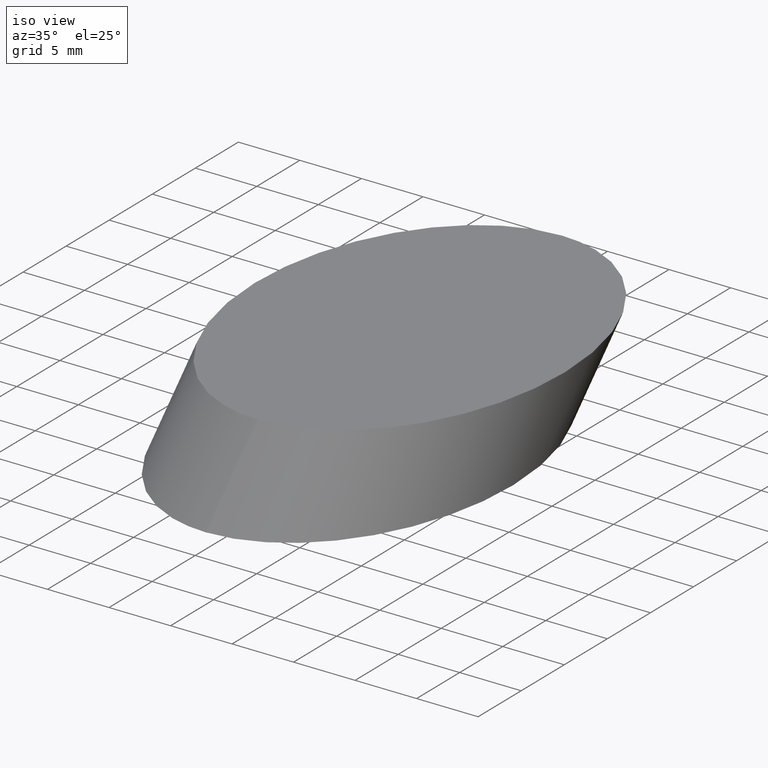
[diagram: clean part render]
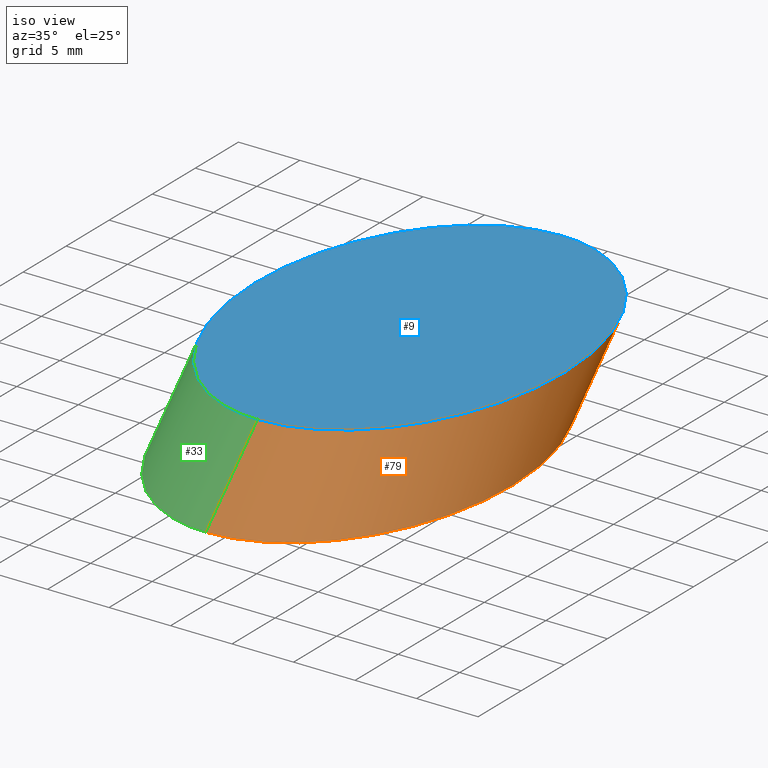
[diagram: same view with three faces highlighted in distinct colors, each labeled with its STEP entity id]
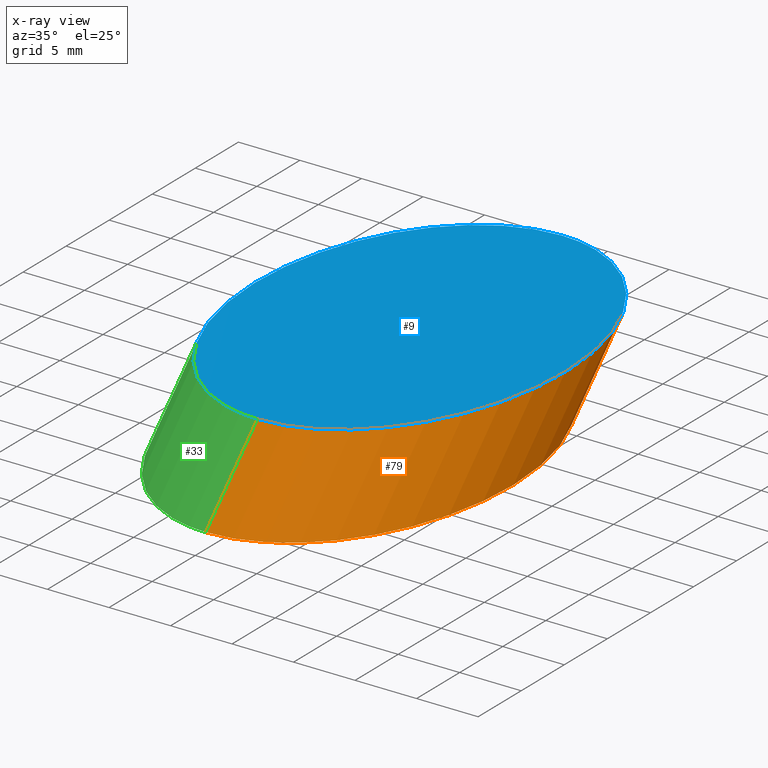
[diagram: x-ray of the same camera — body ghosted, the three highlighted faces saturated]
A machine part, iso view with three faces highlighted in distinct colors.
The next image is the same camera in x-ray (body ghosted, the three faces saturated) — at least one of them is partly hidden behind the body in this view.
Their STEP definitions:

[orange] entity #79 — the highlighted face is a freeform B-spline surface patch.
#5 = CARTESIAN_POINT ( 'NONE',  ( 54.39238298171605400, 47.46885835991988500, -6.000013170402204400 ) ) ;
#16 = CARTESIAN_POINT ( 'NONE',  ( 54.39238298171605400, 18.10887153032210500, -2.602085213965210600E-015 ) ) ;
#18 = LINE ( 'NONE', #80, #77 ) ;
#20 = CARTESIAN_POINT ( 'NONE',  ( 54.39238298171605400, 12.10885835991988600, -6.000013170402204400 ) ) ;
#22 = ORIENTED_EDGE ( 'NONE', *, *, #114, .T. ) ;
#31 = FACE_OUTER_BOUND ( 'NONE', #51, .T. ) ;
#43 =( BOUNDED_CURVE ( )  B_SPLINE_CURVE ( 3, ( #145, #55, #106, #5 ),
 .UNSPECIFIED., .F., .F. ) 
 B_SPLINE_CURVE_WITH_KNOTS ( ( 4, 4 ),
 ( 0.0000000000000000000, 3.141592653589793100 ),
 .UNSPECIFIED. ) 
 CURVE ( )  GEOMETRIC_REPRESENTATION_ITEM ( )  RATIONAL_B_SPLINE_CURVE ( ( 1.000000000000000000, 0.3333333333333333700, 0.3333333333333333700, 1.000000000000000000 ) ) 
 REPRESENTATION_ITEM ( '' )  );
#47 = VECTOR ( 'NONE', #135, 1000.000000000000000 ) ;
#51 = EDGE_LOOP ( 'NONE', ( #22, #66, #70, #91 ) ) ;
#52 = CARTESIAN_POINT ( 'NONE',  ( 54.39238298171605400, 53.46887153032210400, -2.602085213965210600E-015 ) ) ;
#55 = CARTESIAN_POINT ( 'NONE',  ( 79.39238298171605400, 12.10885835991988900, -6.000013170402204400 ) ) ;
#56 = CARTESIAN_POINT ( 'NONE',  ( 54.39238298171605400, 18.10887153032210500, 0.0000000000000000000 ) ) ;
#58 = VERTEX_POINT ( 'NONE', #74 ) ;
#59 = VERTEX_POINT ( 'NONE', #85 ) ;
#63 = CARTESIAN_POINT ( 'NONE',  ( 54.39238298171605400, 47.46885835991988500, -6.000013170402204400 ) ) ;
#66 = ORIENTED_EDGE ( 'NONE', *, *, #108, .T. ) ;
#69 =( BOUNDED_SURFACE ( )  B_SPLINE_SURFACE ( 3, 1, ( 
 ( #141, #16 ),
 ( #87, #132 ),
 ( #120, #130 ),
 ( #63, #52 ) ),
 .UNSPECIFIED., .F., .F., .F. ) 
 B_SPLINE_SURFACE_WITH_KNOTS ( ( 4, 4 ),
 ( 2, 2 ),
 ( 0.0000000000000000000, 1.000000000000000000 ),
 ( 0.0000000000000000000, 1.000000000000000000 ),
 .UNSPECIFIED. ) 
 GEOMETRIC_REPRESENTATION_ITEM ( )  RATIONAL_B_SPLINE_SURFACE ( (
 ( 1.000000000000000000, 1.000000000000000000),
 ( 0.3333333333333333700, 0.3333333333333333700),
 ( 0.3333333333333333700, 0.3333333333333333700),
 ( 1.000000000000000000, 1.000000000000000000) ) ) 
 REPRESENTATION_ITEM ( '' )  SURFACE ( )  );
#70 = ORIENTED_EDGE ( 'NONE', *, *, #88, .F. ) ;
#74 = CARTESIAN_POINT ( 'NONE',  ( 54.39238298171605400, 47.46885835991988500, -6.000013170402204400 ) ) ;
#77 = VECTOR ( 'NONE', #142, 1000.000000000000000 ) ;
#79 = ADVANCED_FACE ( 'NONE', ( #31 ), #69, .T. ) ;
#80 = CARTESIAN_POINT ( 'NONE',  ( 54.39238298171605400, 47.46885835991988500, -6.000013170402204400 ) ) ;
#81 = LINE ( 'NONE', #20, #47 ) ;
#85 = CARTESIAN_POINT ( 'NONE',  ( 54.39238298171605400, 18.10887153032210500, 0.0000000000000000000 ) ) ;
#87 = CARTESIAN_POINT ( 'NONE',  ( 79.39238298171605400, 12.10885835991988600, -6.000013170402204400 ) ) ;
#88 = EDGE_CURVE ( 'NONE', #59, #119, #92, .T. ) ;
#89 = CARTESIAN_POINT ( 'NONE',  ( 79.39238298171605400, 53.46887153032210400, 0.0000000000000000000 ) ) ;
#91 = ORIENTED_EDGE ( 'NONE', *, *, #101, .F. ) ;
#92 =( BOUNDED_CURVE ( )  B_SPLINE_CURVE ( 3, ( #56, #134, #89, #137 ),
 .UNSPECIFIED., .F., .T. ) 
 B_SPLINE_CURVE_WITH_KNOTS ( ( 4, 4 ),
 ( 0.0000000000000000000, 3.141592653589793100 ),
 .UNSPECIFIED. ) 
 CURVE ( )  GEOMETRIC_REPRESENTATION_ITEM ( )  RATIONAL_B_SPLINE_CURVE ( ( 1.000000000000000000, 0.3333333333333333700, 0.3333333333333333700, 1.000000000000000000 ) ) 
 REPRESENTATION_ITEM ( '' )  );
#99 = VERTEX_POINT ( 'NONE', #131 ) ;
#101 = EDGE_CURVE ( 'NONE', #99, #59, #81, .T. ) ;
#106 = CARTESIAN_POINT ( 'NONE',  ( 79.39238298171605400, 47.46885835991987800, -6.000013170402204400 ) ) ;
#108 = EDGE_CURVE ( 'NONE', #58, #119, #18, .T. ) ;
#114 = EDGE_CURVE ( 'NONE', #99, #58, #43, .T. ) ;
#119 = VERTEX_POINT ( 'NONE', #146 ) ;
#120 = CARTESIAN_POINT ( 'NONE',  ( 79.39238298171605400, 47.46885835991988500, -6.000013170402204400 ) ) ;
#130 = CARTESIAN_POINT ( 'NONE',  ( 79.39238298171605400, 53.46887153032210400, -2.602085213965210200E-015 ) ) ;
#131 = CARTESIAN_POINT ( 'NONE',  ( 54.39238298171605400, 12.10885835991988600, -6.000013170402204400 ) ) ;
#132 = CARTESIAN_POINT ( 'NONE',  ( 79.39238298171605400, 18.10887153032210200, -2.602085213965210200E-015 ) ) ;
#134 = CARTESIAN_POINT ( 'NONE',  ( 79.39238298171605400, 18.10887153032210200, 0.0000000000000000000 ) ) ;
#135 = DIRECTION ( 'NONE',  ( 0.0000000000000000000, 0.7071067811865484600, 0.7071067811865465700 ) ) ;
#137 = CARTESIAN_POINT ( 'NONE',  ( 54.39238298171605400, 53.46887153032210400, 0.0000000000000000000 ) ) ;
#141 = CARTESIAN_POINT ( 'NONE',  ( 54.39238298171605400, 12.10885835991988600, -6.000013170402204400 ) ) ;
#142 = DIRECTION ( 'NONE',  ( 0.0000000000000000000, 0.7071067811865484600, 0.7071067811865465700 ) ) ;
#145 = CARTESIAN_POINT ( 'NONE',  ( 54.39238298171605400, 12.10885835991988600, -6.000013170402204400 ) ) ;
#146 = CARTESIAN_POINT ( 'NONE',  ( 54.39238298171605400, 53.46887153032210400, 0.0000000000000000000 ) ) ;

[blue] entity #9 — the highlighted planar face has unit normal (0, 0, 1).
#9 = ADVANCED_FACE ( 'NONE', ( #109 ), #72, .T. ) ;
#19 = EDGE_CURVE ( 'NONE', #119, #59, #96, .T. ) ;
#27 = AXIS2_PLACEMENT_3D ( 'NONE', #75, #39, #84 ) ;
#39 = DIRECTION ( 'NONE',  ( 0.0000000000000000000, 0.0000000000000000000, 1.000000000000000000 ) ) ;
#56 = CARTESIAN_POINT ( 'NONE',  ( 54.39238298171605400, 18.10887153032210500, 0.0000000000000000000 ) ) ;
#59 = VERTEX_POINT ( 'NONE', #85 ) ;
#72 = PLANE ( 'NONE',  #27 ) ;
#75 = CARTESIAN_POINT ( 'NONE',  ( 54.39238298171605400, 35.78887153032210500, 0.0000000000000000000 ) ) ;
#84 = DIRECTION ( 'NONE',  ( 1.000000000000000000, 0.0000000000000000000, -0.0000000000000000000 ) ) ;
#85 = CARTESIAN_POINT ( 'NONE',  ( 54.39238298171605400, 18.10887153032210500, 0.0000000000000000000 ) ) ;
#88 = EDGE_CURVE ( 'NONE', #59, #119, #92, .T. ) ;
#89 = CARTESIAN_POINT ( 'NONE',  ( 79.39238298171605400, 53.46887153032210400, 0.0000000000000000000 ) ) ;
#92 =( BOUNDED_CURVE ( )  B_SPLINE_CURVE ( 3, ( #56, #134, #89, #137 ),
 .UNSPECIFIED., .F., .T. ) 
 B_SPLINE_CURVE_WITH_KNOTS ( ( 4, 4 ),
 ( 0.0000000000000000000, 3.141592653589793100 ),
 .UNSPECIFIED. ) 
 CURVE ( )  GEOMETRIC_REPRESENTATION_ITEM ( )  RATIONAL_B_SPLINE_CURVE ( ( 1.000000000000000000, 0.3333333333333333700, 0.3333333333333333700, 1.000000000000000000 ) ) 
 REPRESENTATION_ITEM ( '' )  );
#94 = CARTESIAN_POINT ( 'NONE',  ( 54.39238298171605400, 18.10887153032210500, 0.0000000000000000000 ) ) ;
#95 = CARTESIAN_POINT ( 'NONE',  ( 54.39238298171605400, 53.46887153032210400, 0.0000000000000000000 ) ) ;
#96 =( BOUNDED_CURVE ( )  B_SPLINE_CURVE ( 3, ( #95, #128, #105, #94 ),
 .UNSPECIFIED., .F., .F. ) 
 B_SPLINE_CURVE_WITH_KNOTS ( ( 4, 4 ),
 ( 3.141592653589793100, 6.283185307179586200 ),
 .UNSPECIFIED. ) 
 CURVE ( )  GEOMETRIC_REPRESENTATION_ITEM ( )  RATIONAL_B_SPLINE_CURVE ( ( 1.000000000000000000, 0.3333333333333333700, 0.3333333333333333700, 1.000000000000000000 ) ) 
 REPRESENTATION_ITEM ( '' )  );
#105 = CARTESIAN_POINT ( 'NONE',  ( 29.39238298171604700, 18.10887153032210200, 0.0000000000000000000 ) ) ;
#109 = FACE_OUTER_BOUND ( 'NONE', #136, .T. ) ;
#119 = VERTEX_POINT ( 'NONE', #146 ) ;
#127 = ORIENTED_EDGE ( 'NONE', *, *, #19, .T. ) ;
#128 = CARTESIAN_POINT ( 'NONE',  ( 29.39238298171604700, 53.46887153032211200, 0.0000000000000000000 ) ) ;
#134 = CARTESIAN_POINT ( 'NONE',  ( 79.39238298171605400, 18.10887153032210200, 0.0000000000000000000 ) ) ;
#136 = EDGE_LOOP ( 'NONE', ( #147, #127 ) ) ;
#137 = CARTESIAN_POINT ( 'NONE',  ( 54.39238298171605400, 53.46887153032210400, 0.0000000000000000000 ) ) ;
#146 = CARTESIAN_POINT ( 'NONE',  ( 54.39238298171605400, 53.46887153032210400, 0.0000000000000000000 ) ) ;
#147 = ORIENTED_EDGE ( 'NONE', *, *, #88, .T. ) ;

[green] entity #33 — the highlighted face is a freeform B-spline surface patch.
#3 = CARTESIAN_POINT ( 'NONE',  ( 54.39238298171605400, 18.10887153032210500, -1.734723475976807100E-015 ) ) ;
#4 = ORIENTED_EDGE ( 'NONE', *, *, #108, .F. ) ;
#18 = LINE ( 'NONE', #80, #77 ) ;
#19 = EDGE_CURVE ( 'NONE', #119, #59, #96, .T. ) ;
#20 = CARTESIAN_POINT ( 'NONE',  ( 54.39238298171605400, 12.10885835991988600, -6.000013170402204400 ) ) ;
#28 = CARTESIAN_POINT ( 'NONE',  ( 29.39238298171604700, 47.46885835991989200, -6.000013170402204400 ) ) ;
#29 = CARTESIAN_POINT ( 'NONE',  ( 29.39238298171604700, 47.46885835991989200, -6.000013170402204400 ) ) ;
#33 = ADVANCED_FACE ( 'NONE', ( #62 ), #49, .T. ) ;
#35 = ORIENTED_EDGE ( 'NONE', *, *, #19, .F. ) ;
#41 = CARTESIAN_POINT ( 'NONE',  ( 54.39238298171605400, 12.10885835991988600, -6.000013170402204400 ) ) ;
#47 = VECTOR ( 'NONE', #135, 1000.000000000000000 ) ;
#49 =( BOUNDED_SURFACE ( )  B_SPLINE_SURFACE ( 3, 1, ( 
 ( #50, #129 ),
 ( #28, #117 ),
 ( #97, #140 ),
 ( #71, #3 ) ),
 .UNSPECIFIED., .F., .F., .T. ) 
 B_SPLINE_SURFACE_WITH_KNOTS ( ( 4, 4 ),
 ( 2, 2 ),
 ( 0.0000000000000000000, 1.000000000000000000 ),
 ( 0.0000000000000000000, 1.000000000000000000 ),
 .UNSPECIFIED. ) 
 GEOMETRIC_REPRESENTATION_ITEM ( )  RATIONAL_B_SPLINE_SURFACE ( (
 ( 1.000000000000000000, 1.000000000000000000),
 ( 0.3333333333333333700, 0.3333333333333333700),
 ( 0.3333333333333333700, 0.3333333333333333700),
 ( 1.000000000000000000, 1.000000000000000000) ) ) 
 REPRESENTATION_ITEM ( '' )  SURFACE ( )  );
#50 = CARTESIAN_POINT ( 'NONE',  ( 54.39238298171605400, 47.46885835991988500, -6.000013170402204400 ) ) ;
#58 = VERTEX_POINT ( 'NONE', #74 ) ;
#59 = VERTEX_POINT ( 'NONE', #85 ) ;
#62 = FACE_OUTER_BOUND ( 'NONE', #115, .T. ) ;
#65 =( BOUNDED_CURVE ( )  B_SPLINE_CURVE ( 3, ( #116, #29, #143, #41 ),
 .UNSPECIFIED., .F., .T. ) 
 B_SPLINE_CURVE_WITH_KNOTS ( ( 4, 4 ),
 ( 3.141592653589793100, 6.283185307179586200 ),
 .UNSPECIFIED. ) 
 CURVE ( )  GEOMETRIC_REPRESENTATION_ITEM ( )  RATIONAL_B_SPLINE_CURVE ( ( 1.000000000000000000, 0.3333333333333333700, 0.3333333333333333700, 1.000000000000000000 ) ) 
 REPRESENTATION_ITEM ( '' )  );
#67 = ORIENTED_EDGE ( 'NONE', *, *, #82, .T. ) ;
#71 = CARTESIAN_POINT ( 'NONE',  ( 54.39238298171605400, 12.10885835991988600, -6.000013170402204400 ) ) ;
#74 = CARTESIAN_POINT ( 'NONE',  ( 54.39238298171605400, 47.46885835991988500, -6.000013170402204400 ) ) ;
#77 = VECTOR ( 'NONE', #142, 1000.000000000000000 ) ;
#80 = CARTESIAN_POINT ( 'NONE',  ( 54.39238298171605400, 47.46885835991988500, -6.000013170402204400 ) ) ;
#81 = LINE ( 'NONE', #20, #47 ) ;
#82 = EDGE_CURVE ( 'NONE', #58, #99, #65, .T. ) ;
#85 = CARTESIAN_POINT ( 'NONE',  ( 54.39238298171605400, 18.10887153032210500, 0.0000000000000000000 ) ) ;
#94 = CARTESIAN_POINT ( 'NONE',  ( 54.39238298171605400, 18.10887153032210500, 0.0000000000000000000 ) ) ;
#95 = CARTESIAN_POINT ( 'NONE',  ( 54.39238298171605400, 53.46887153032210400, 0.0000000000000000000 ) ) ;
#96 =( BOUNDED_CURVE ( )  B_SPLINE_CURVE ( 3, ( #95, #128, #105, #94 ),
 .UNSPECIFIED., .F., .F. ) 
 B_SPLINE_CURVE_WITH_KNOTS ( ( 4, 4 ),
 ( 3.141592653589793100, 6.283185307179586200 ),
 .UNSPECIFIED. ) 
 CURVE ( )  GEOMETRIC_REPRESENTATION_ITEM ( )  RATIONAL_B_SPLINE_CURVE ( ( 1.000000000000000000, 0.3333333333333333700, 0.3333333333333333700, 1.000000000000000000 ) ) 
 REPRESENTATION_ITEM ( '' )  );
#97 = CARTESIAN_POINT ( 'NONE',  ( 29.39238298171604700, 12.10885835991988600, -6.000013170402204400 ) ) ;
#99 = VERTEX_POINT ( 'NONE', #131 ) ;
#101 = EDGE_CURVE ( 'NONE', #99, #59, #81, .T. ) ;
#105 = CARTESIAN_POINT ( 'NONE',  ( 29.39238298171604700, 18.10887153032210200, 0.0000000000000000000 ) ) ;
#108 = EDGE_CURVE ( 'NONE', #58, #119, #18, .T. ) ;
#115 = EDGE_LOOP ( 'NONE', ( #4, #67, #125, #35 ) ) ;
#116 = CARTESIAN_POINT ( 'NONE',  ( 54.39238298171605400, 47.46885835991988500, -6.000013170402204400 ) ) ;
#117 = CARTESIAN_POINT ( 'NONE',  ( 29.39238298171604700, 53.46887153032211200, -1.301042606982605100E-015 ) ) ;
#119 = VERTEX_POINT ( 'NONE', #146 ) ;
#125 = ORIENTED_EDGE ( 'NONE', *, *, #101, .T. ) ;
#128 = CARTESIAN_POINT ( 'NONE',  ( 29.39238298171604700, 53.46887153032211200, 0.0000000000000000000 ) ) ;
#129 = CARTESIAN_POINT ( 'NONE',  ( 54.39238298171605400, 53.46887153032210400, -1.734723475976807100E-015 ) ) ;
#131 = CARTESIAN_POINT ( 'NONE',  ( 54.39238298171605400, 12.10885835991988600, -6.000013170402204400 ) ) ;
#135 = DIRECTION ( 'NONE',  ( 0.0000000000000000000, 0.7071067811865484600, 0.7071067811865465700 ) ) ;
#140 = CARTESIAN_POINT ( 'NONE',  ( 29.39238298171604700, 18.10887153032210200, -1.301042606982605100E-015 ) ) ;
#142 = DIRECTION ( 'NONE',  ( 0.0000000000000000000, 0.7071067811865484600, 0.7071067811865465700 ) ) ;
#143 = CARTESIAN_POINT ( 'NONE',  ( 29.39238298171604700, 12.10885835991988900, -6.000013170402204400 ) ) ;
#146 = CARTESIAN_POINT ( 'NONE',  ( 54.39238298171605400, 53.46887153032210400, 0.0000000000000000000 ) ) ;